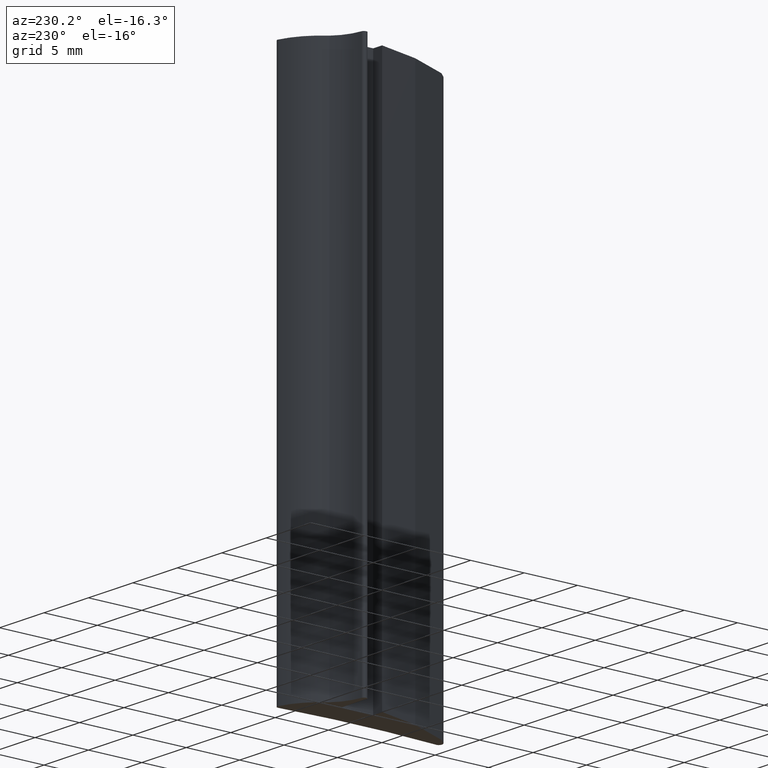
[diagram: clean part render]
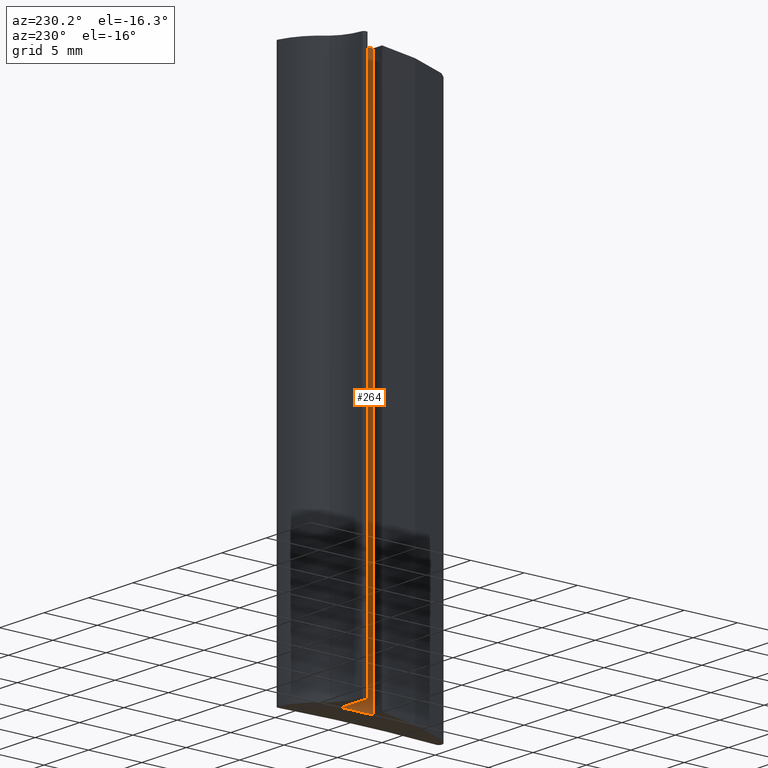
[diagram: same view with one face highlighted and labeled with its STEP entity id]
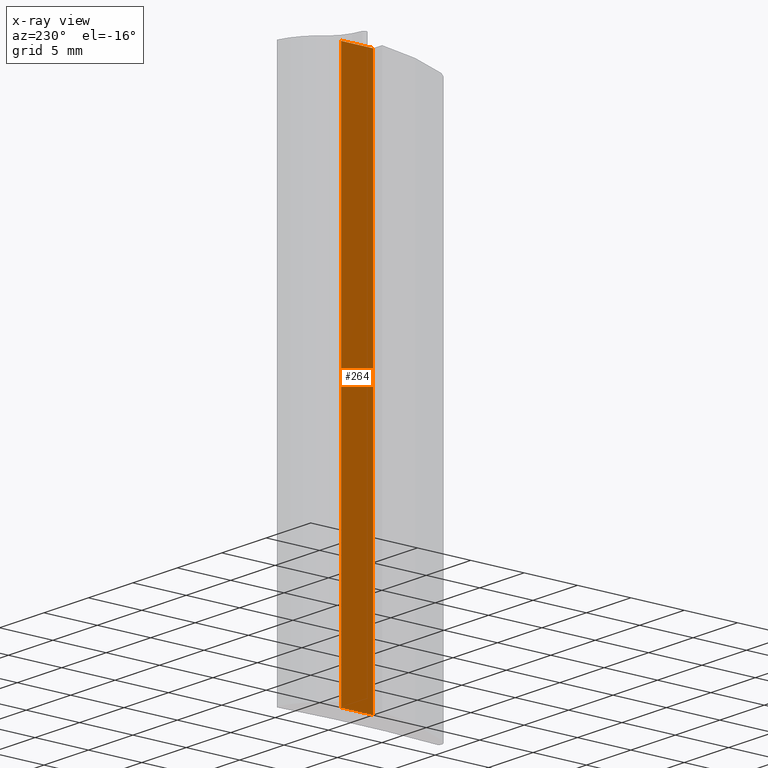
[diagram: x-ray of the same camera — body ghosted, the highlighted face saturated]
A machine part, auxiliary view. The second image highlights one B-rep face of the part: STEP entity #264.
The next image is the same camera in x-ray: the body ghosted, the highlighted face saturated — about 0% of this face is hidden behind the body in this view.
In plain terms, the highlighted planar face has unit normal (-1, 0, 0).
Its self-contained STEP definition (entity closure, byte-faithful):
#208=CARTESIAN_POINT('',(-2.965201671713658,11.287572264112896,0.0));
#209=VERTEX_POINT('',#208);
#216=CARTESIAN_POINT('',(-2.965201671713658,11.287572264112896,50.0));
#217=VERTEX_POINT('',#216);
#218=CARTESIAN_POINT('',(-2.965201671713658,11.287572264112896,0.0));
#219=DIRECTION('',(0.0,0.0,1.0));
#220=VECTOR('',#219,50.0);
#221=LINE('',#218,#220);
#222=EDGE_CURVE('',#209,#217,#221,.T.);
#234=CARTESIAN_POINT('',(-2.965201671713658,11.287572264112896,0.0));
#235=DIRECTION('',(-1.0,0.0,0.0));
#236=DIRECTION('',(0.0,-1.0,0.0));
#237=AXIS2_PLACEMENT_3D('',#234,#235,#236);
#238=PLANE('',#237);
#239=CARTESIAN_POINT('',(-2.965201671713658,8.287572930124952,0.0));
#240=VERTEX_POINT('',#239);
#241=CARTESIAN_POINT('',(-2.965201671713658,11.287572264112896,0.0));
#242=DIRECTION('',(0.0,-1.0,0.0));
#243=VECTOR('',#242,2.999999333988011);
#244=LINE('',#241,#243);
#245=EDGE_CURVE('',#209,#240,#244,.T.);
#246=ORIENTED_EDGE('',*,*,#245,.T.);
#247=CARTESIAN_POINT('',(-2.965201671713658,8.287572930124952,50.0));
#248=VERTEX_POINT('',#247);
#249=CARTESIAN_POINT('',(-2.965201671713658,8.287572930124952,0.0));
#250=DIRECTION('',(0.0,0.0,1.0));
#251=VECTOR('',#250,50.0);
#252=LINE('',#249,#251);
#253=EDGE_CURVE('',#240,#248,#252,.T.);
#254=ORIENTED_EDGE('',*,*,#253,.T.);
#255=CARTESIAN_POINT('',(-2.965201671713658,11.287572264112896,50.0));
#256=DIRECTION('',(0.0,-1.0,0.0));
#257=VECTOR('',#256,2.999999333988011);
#258=LINE('',#255,#257);
#259=EDGE_CURVE('',#217,#248,#258,.T.);
#260=ORIENTED_EDGE('',*,*,#259,.F.);
#261=ORIENTED_EDGE('',*,*,#222,.F.);
#262=EDGE_LOOP('',(#246,#254,#260,#261));
#263=FACE_OUTER_BOUND('',#262,.T.);
#264=ADVANCED_FACE('',(#263),#238,.T.);